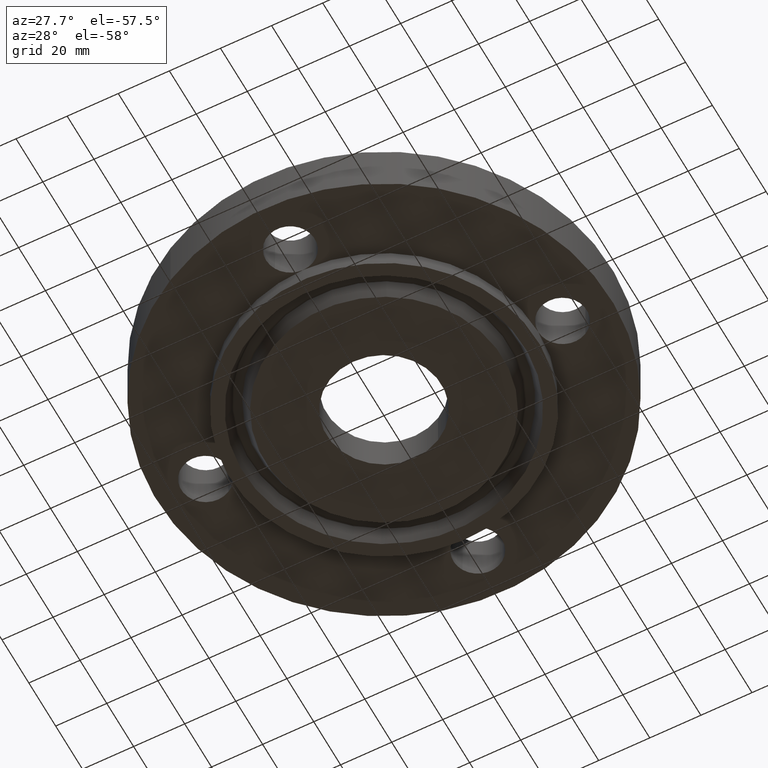
[diagram: clean part render]
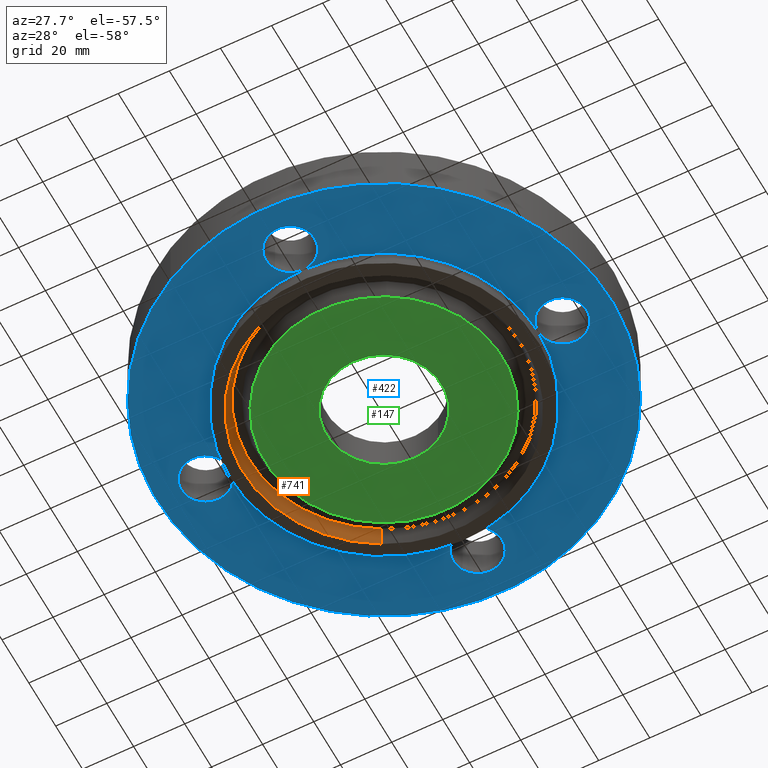
[diagram: same view with three faces highlighted in distinct colors, each labeled with its STEP entity id]
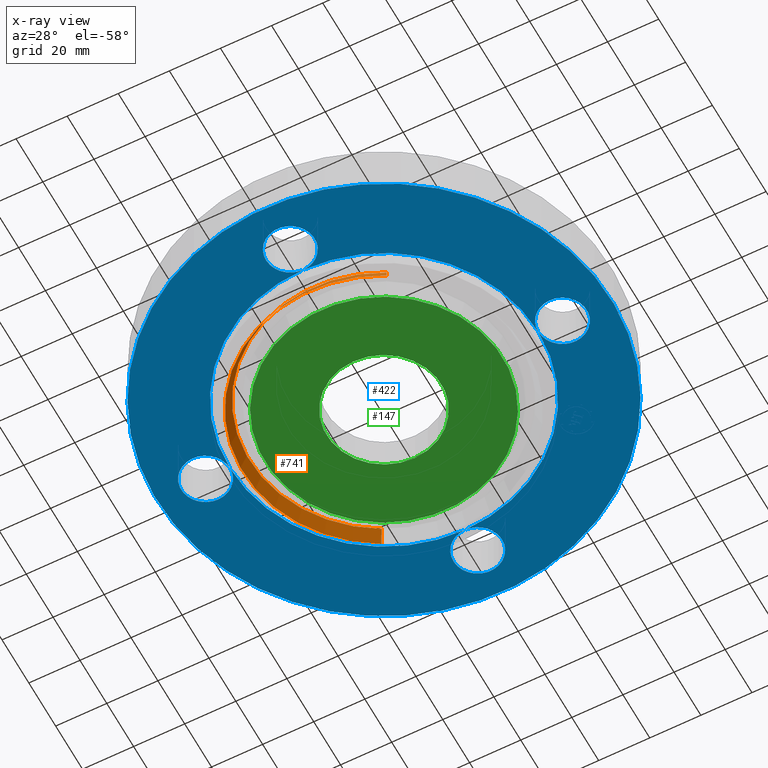
[diagram: x-ray of the same camera — body ghosted, the three highlighted faces saturated]
A machine part, auxiliary view with three faces highlighted in distinct colors.
The next image is the same camera in x-ray (body ghosted, the three faces saturated) — at least one of them is partly hidden behind the body in this view.
Their STEP definitions:

[orange] entity #741 — the highlighted conical surface has half-angle 23 deg.
#211=AXIS2_PLACEMENT_3D('Circle Axis2P3D',#209,#210,$) ;
#702=AXIS2_PLACEMENT_3D('Cone Axis2P3D',#699,#700,#701) ;
#732=AXIS2_PLACEMENT_3D('Circle Axis2P3D',#730,#731,$) ;
#209=CARTESIAN_POINT('Axis2P3D Location',(1.39870617276E-016,4.19611851827E-016,-0.250000000001)) ;
#213=CARTESIAN_POINT('Vertex',(1.04125234166,-1.90599962661,-0.250000000001)) ;
#215=CARTESIAN_POINT('Vertex',(-1.04125234166,1.90599962661,-0.250000000001)) ;
#699=CARTESIAN_POINT('Axis2P3D Location',(0.,0.,-0.0190396522348)) ;
#704=CARTESIAN_POINT('Line Origine',(1.01775165657,-1.86298191111,-0.134519826118)) ;
#708=CARTESIAN_POINT('Vertex',(0.994250971485,-1.8199641956,-0.0190396522348)) ;
#715=CARTESIAN_POINT('Vertex',(-0.994250971485,1.8199641956,-0.0190396522348)) ;
#718=CARTESIAN_POINT('Line Origine',(-1.01775165657,1.86298191111,-0.134519826118)) ;
#730=CARTESIAN_POINT('Axis2P3D Location',(0.,0.,-0.0190396522348)) ;
#210=DIRECTION('Axis2P3D Direction',(0.,0.,-0.0393700787402)) ;
#700=DIRECTION('Axis2P3D Direction',(-0.,-0.,-0.0393700787402)) ;
#701=DIRECTION('Axis2P3D XDirection',(0.0188750212049,-0.0345504945626,0.)) ;
#705=DIRECTION('Vector Direction',(0.00737505833565,-0.0134999537303,-0.0362403485611)) ;
#719=DIRECTION('Vector Direction',(-0.00737505833565,0.0134999537303,-0.0362403485611)) ;
#731=DIRECTION('Axis2P3D Direction',(0.,0.,-0.0393700787402)) ;
#706=VECTOR('Line Direction',#705,0.0393700787402) ;
#720=VECTOR('Line Direction',#719,0.0393700787402) ;
#736=ORIENTED_EDGE('',*,*,#217,.T.) ;
#737=ORIENTED_EDGE('',*,*,#722,.T.) ;
#738=ORIENTED_EDGE('',*,*,#734,.T.) ;
#739=ORIENTED_EDGE('',*,*,#710,.F.) ;
#741=ADVANCED_FACE('PartBody',(#740),#703,.F.) ;
#212=CIRCLE('generated circle',#211,2.17187500001) ;
#733=CIRCLE('generated circle',#732,2.07383814884) ;
#703=CONICAL_SURFACE('Cone',#702,2.07383814884,0.401425727959) ;
#217=EDGE_CURVE('',#214,#216,#212,.T.) ;
#710=EDGE_CURVE('',#214,#709,#707,.F.) ;
#722=EDGE_CURVE('',#216,#716,#721,.F.) ;
#734=EDGE_CURVE('',#716,#709,#733,.F.) ;
#735=EDGE_LOOP('',(#736,#737,#738,#739)) ;
#740=FACE_OUTER_BOUND('',#735,.T.) ;
#707=LINE('Line',#704,#706) ;
#721=LINE('Line',#718,#720) ;
#214=VERTEX_POINT('',#213) ;
#216=VERTEX_POINT('',#215) ;
#709=VERTEX_POINT('',#708) ;
#716=VERTEX_POINT('',#715) ;

[blue] entity #422 — the highlighted planar face has unit normal (0, 0, -1).
#242=AXIS2_PLACEMENT_3D('Circle Axis2P3D',#240,#241,$) ;
#249=AXIS2_PLACEMENT_3D('Circle Axis2P3D',#247,#248,$) ;
#256=AXIS2_PLACEMENT_3D('Circle Axis2P3D',#254,#255,$) ;
#277=AXIS2_PLACEMENT_3D('Circle Axis2P3D',#275,#276,$) ;
#284=AXIS2_PLACEMENT_3D('Circle Axis2P3D',#282,#283,$) ;
#291=AXIS2_PLACEMENT_3D('Circle Axis2P3D',#289,#290,$) ;
#306=AXIS2_PLACEMENT_3D('Plane Axis2P3D',#303,#304,#305) ;
#310=AXIS2_PLACEMENT_3D('Circle Axis2P3D',#308,#309,$) ;
#319=AXIS2_PLACEMENT_3D('Circle Axis2P3D',#317,#318,$) ;
#328=AXIS2_PLACEMENT_3D('Circle Axis2P3D',#326,#327,$) ;
#335=AXIS2_PLACEMENT_3D('Circle Axis2P3D',#333,#334,$) ;
#342=AXIS2_PLACEMENT_3D('Circle Axis2P3D',#340,#341,$) ;
#347=AXIS2_PLACEMENT_3D('Circle Axis2P3D',#345,#346,$) ;
#354=AXIS2_PLACEMENT_3D('Circle Axis2P3D',#352,#353,$) ;
#361=AXIS2_PLACEMENT_3D('Circle Axis2P3D',#359,#360,$) ;
#366=AXIS2_PLACEMENT_3D('Circle Axis2P3D',#364,#365,$) ;
#373=AXIS2_PLACEMENT_3D('Circle Axis2P3D',#371,#372,$) ;
#380=AXIS2_PLACEMENT_3D('Circle Axis2P3D',#378,#379,$) ;
#385=AXIS2_PLACEMENT_3D('Circle Axis2P3D',#383,#384,$) ;
#392=AXIS2_PLACEMENT_3D('Circle Axis2P3D',#390,#391,$) ;
#399=AXIS2_PLACEMENT_3D('Circle Axis2P3D',#397,#398,$) ;
#237=CARTESIAN_POINT('Vertex',(-1.13863565419,-2.0842585845,2.09805925913E-016)) ;
#240=CARTESIAN_POINT('Axis2P3D Location',(0.,0.,2.79741234551E-016)) ;
#244=CARTESIAN_POINT('Vertex',(-2.37500000001,-2.79741234551E-016,0.)) ;
#247=CARTESIAN_POINT('Axis2P3D Location',(0.,0.,2.79741234551E-016)) ;
#251=CARTESIAN_POINT('Vertex',(-9.45568263898E-015,2.37500000001,2.79741234551E-016)) ;
#254=CARTESIAN_POINT('Axis2P3D Location',(0.,0.,2.79741234551E-016)) ;
#258=CARTESIAN_POINT('Vertex',(1.13863565419,2.0842585845,2.09805925913E-016)) ;
#275=CARTESIAN_POINT('Axis2P3D Location',(0.,0.,2.79741234551E-016)) ;
#279=CARTESIAN_POINT('Vertex',(2.37500000001,2.79741234551E-016,0.)) ;
#282=CARTESIAN_POINT('Axis2P3D Location',(0.,0.,2.79741234551E-016)) ;
#286=CARTESIAN_POINT('Vertex',(-5.22767466522E-017,-2.37500000001,0.)) ;
#289=CARTESIAN_POINT('Axis2P3D Location',(0.,0.,2.79741234551E-016)) ;
#303=CARTESIAN_POINT('Axis2P3D Location',(0.,2.37500000001,0.)) ;
#308=CARTESIAN_POINT('Axis2P3D Location',(0.,0.,0.)) ;
#312=CARTESIAN_POINT('Vertex',(-1.67798938512,-3.07153896663,2.79741234551E-016)) ;
#314=CARTESIAN_POINT('Vertex',(1.67798938512,3.07153896663,2.79741234551E-016)) ;
#317=CARTESIAN_POINT('Axis2P3D Location',(0.,0.,0.)) ;
#326=CARTESIAN_POINT('Axis2P3D Location',(3.49676543189E-016,-2.75000000001,0.)) ;
#330=CARTESIAN_POINT('Vertex',(-0.32909346071,-2.57021542303,0.)) ;
#333=CARTESIAN_POINT('Axis2P3D Location',(3.75902283928E-016,-2.75000000001,0.)) ;
#337=CARTESIAN_POINT('Vertex',(0.32909346071,-2.92978457699,0.)) ;
#340=CARTESIAN_POINT('Axis2P3D Location',(3.49676543189E-016,-2.75000000001,0.)) ;
#345=CARTESIAN_POINT('Axis2P3D Location',(2.75000000001,2.79741234551E-016,0.)) ;
#349=CARTESIAN_POINT('Vertex',(2.57021542303,-0.32909346071,0.)) ;
#352=CARTESIAN_POINT('Axis2P3D Location',(2.75000000001,0.,0.)) ;
#356=CARTESIAN_POINT('Vertex',(2.92978457699,0.32909346071,0.)) ;
#359=CARTESIAN_POINT('Axis2P3D Location',(2.75000000001,2.79741234551E-016,0.)) ;
#364=CARTESIAN_POINT('Axis2P3D Location',(-1.04902962957E-016,2.75000000001,0.)) ;
#368=CARTESIAN_POINT('Vertex',(0.32909346071,2.57021542303,0.)) ;
#371=CARTESIAN_POINT('Axis2P3D Location',(-8.74191357973E-018,2.75000000001,0.)) ;
#375=CARTESIAN_POINT('Vertex',(-0.32909346071,2.92978457699,0.)) ;
#378=CARTESIAN_POINT('Axis2P3D Location',(-1.04902962957E-016,2.75000000001,0.)) ;
#383=CARTESIAN_POINT('Axis2P3D Location',(-2.75000000001,-2.79741234551E-016,0.)) ;
#387=CARTESIAN_POINT('Vertex',(-2.57021542303,0.32909346071,0.)) ;
#390=CARTESIAN_POINT('Axis2P3D Location',(-2.75000000001,-2.79741234551E-016,0.)) ;
#394=CARTESIAN_POINT('Vertex',(-2.92978457699,-0.32909346071,0.)) ;
#397=CARTESIAN_POINT('Axis2P3D Location',(-2.75000000001,-2.79741234551E-016,0.)) ;
#241=DIRECTION('Axis2P3D Direction',(0.,0.,-0.0393700787402)) ;
#248=DIRECTION('Axis2P3D Direction',(0.,0.,-0.0393700787402)) ;
#255=DIRECTION('Axis2P3D Direction',(0.,0.,-0.0393700787402)) ;
#276=DIRECTION('Axis2P3D Direction',(0.,0.,-0.0393700787402)) ;
#283=DIRECTION('Axis2P3D Direction',(0.,0.,-0.0393700787402)) ;
#290=DIRECTION('Axis2P3D Direction',(0.,0.,-0.0393700787402)) ;
#304=DIRECTION('Axis2P3D Direction',(0.,0.,-0.0393700787402)) ;
#305=DIRECTION('Axis2P3D XDirection',(0.0393700787402,0.,0.)) ;
#309=DIRECTION('Axis2P3D Direction',(0.,0.,-0.0393700787402)) ;
#318=DIRECTION('Axis2P3D Direction',(0.,0.,-0.0393700787402)) ;
#327=DIRECTION('Axis2P3D Direction',(0.,0.,-0.0393700787402)) ;
#334=DIRECTION('Axis2P3D Direction',(0.,0.,-0.0393700787402)) ;
#341=DIRECTION('Axis2P3D Direction',(0.,0.,-0.0393700787402)) ;
#346=DIRECTION('Axis2P3D Direction',(0.,0.,-0.0393700787402)) ;
#353=DIRECTION('Axis2P3D Direction',(0.,0.,-0.0393700787402)) ;
#360=DIRECTION('Axis2P3D Direction',(0.,0.,-0.0393700787402)) ;
#365=DIRECTION('Axis2P3D Direction',(0.,0.,-0.0393700787402)) ;
#372=DIRECTION('Axis2P3D Direction',(0.,0.,-0.0393700787402)) ;
#379=DIRECTION('Axis2P3D Direction',(0.,0.,-0.0393700787402)) ;
#384=DIRECTION('Axis2P3D Direction',(0.,0.,-0.0393700787402)) ;
#391=DIRECTION('Axis2P3D Direction',(0.,0.,-0.0393700787402)) ;
#398=DIRECTION('Axis2P3D Direction',(0.,0.,-0.0393700787402)) ;
#323=ORIENTED_EDGE('',*,*,#316,.T.) ;
#324=ORIENTED_EDGE('',*,*,#321,.T.) ;
#403=ORIENTED_EDGE('',*,*,#332,.F.) ;
#404=ORIENTED_EDGE('',*,*,#339,.F.) ;
#405=ORIENTED_EDGE('',*,*,#344,.F.) ;
#406=ORIENTED_EDGE('',*,*,#288,.F.) ;
#407=ORIENTED_EDGE('',*,*,#351,.F.) ;
#408=ORIENTED_EDGE('',*,*,#358,.F.) ;
#409=ORIENTED_EDGE('',*,*,#363,.F.) ;
#410=ORIENTED_EDGE('',*,*,#281,.F.) ;
#411=ORIENTED_EDGE('',*,*,#260,.F.) ;
#412=ORIENTED_EDGE('',*,*,#370,.F.) ;
#413=ORIENTED_EDGE('',*,*,#377,.F.) ;
#414=ORIENTED_EDGE('',*,*,#382,.F.) ;
#415=ORIENTED_EDGE('',*,*,#253,.F.) ;
#416=ORIENTED_EDGE('',*,*,#389,.F.) ;
#417=ORIENTED_EDGE('',*,*,#396,.F.) ;
#418=ORIENTED_EDGE('',*,*,#401,.F.) ;
#419=ORIENTED_EDGE('',*,*,#246,.F.) ;
#420=ORIENTED_EDGE('',*,*,#293,.F.) ;
#421=FACE_BOUND('',#402,.T.) ;
#422=ADVANCED_FACE('PartBody',(#325,#421),#307,.T.) ;
#243=CIRCLE('generated circle',#242,2.37500000001) ;
#250=CIRCLE('generated circle',#249,2.37500000001) ;
#257=CIRCLE('generated circle',#256,2.37500000001) ;
#278=CIRCLE('generated circle',#277,2.37500000001) ;
#285=CIRCLE('generated circle',#284,2.37500000001) ;
#292=CIRCLE('generated circle',#291,2.37500000001) ;
#311=CIRCLE('generated circle',#310,3.50000000001) ;
#320=CIRCLE('generated circle',#319,3.50000000001) ;
#329=CIRCLE('generated circle',#328,0.375000000001) ;
#336=CIRCLE('generated circle',#335,0.375000000001) ;
#343=CIRCLE('generated circle',#342,0.375000000001) ;
#348=CIRCLE('generated circle',#347,0.375000000001) ;
#355=CIRCLE('generated circle',#354,0.375000000001) ;
#362=CIRCLE('generated circle',#361,0.375000000001) ;
#367=CIRCLE('generated circle',#366,0.375000000001) ;
#374=CIRCLE('generated circle',#373,0.375000000001) ;
#381=CIRCLE('generated circle',#380,0.375000000001) ;
#386=CIRCLE('generated circle',#385,0.375000000001) ;
#393=CIRCLE('generated circle',#392,0.375000000001) ;
#400=CIRCLE('generated circle',#399,0.375000000001) ;
#246=EDGE_CURVE('',#238,#245,#243,.T.) ;
#253=EDGE_CURVE('',#245,#252,#250,.T.) ;
#260=EDGE_CURVE('',#252,#259,#257,.T.) ;
#281=EDGE_CURVE('',#259,#280,#278,.T.) ;
#288=EDGE_CURVE('',#280,#287,#285,.T.) ;
#293=EDGE_CURVE('',#287,#238,#292,.T.) ;
#316=EDGE_CURVE('',#313,#315,#311,.T.) ;
#321=EDGE_CURVE('',#315,#313,#320,.T.) ;
#332=EDGE_CURVE('',#331,#287,#329,.T.) ;
#339=EDGE_CURVE('',#338,#331,#336,.T.) ;
#344=EDGE_CURVE('',#287,#338,#343,.T.) ;
#351=EDGE_CURVE('',#350,#280,#348,.T.) ;
#358=EDGE_CURVE('',#357,#350,#355,.T.) ;
#363=EDGE_CURVE('',#280,#357,#362,.T.) ;
#370=EDGE_CURVE('',#369,#252,#367,.T.) ;
#377=EDGE_CURVE('',#376,#369,#374,.T.) ;
#382=EDGE_CURVE('',#252,#376,#381,.T.) ;
#389=EDGE_CURVE('',#388,#245,#386,.T.) ;
#396=EDGE_CURVE('',#395,#388,#393,.T.) ;
#401=EDGE_CURVE('',#245,#395,#400,.T.) ;
#322=EDGE_LOOP('',(#323,#324)) ;
#402=EDGE_LOOP('',(#403,#404,#405,#406,#407,#408,#409,#410,#411,#412,#413,#414,#415,#416,#417,#418,#419,#420)) ;
#325=FACE_OUTER_BOUND('',#322,.T.) ;
#307=PLANE('',#306) ;
#238=VERTEX_POINT('',#237) ;
#245=VERTEX_POINT('',#244) ;
#252=VERTEX_POINT('',#251) ;
#259=VERTEX_POINT('',#258) ;
#280=VERTEX_POINT('',#279) ;
#287=VERTEX_POINT('',#286) ;
#313=VERTEX_POINT('',#312) ;
#315=VERTEX_POINT('',#314) ;
#331=VERTEX_POINT('',#330) ;
#338=VERTEX_POINT('',#337) ;
#350=VERTEX_POINT('',#349) ;
#357=VERTEX_POINT('',#356) ;
#369=VERTEX_POINT('',#368) ;
#376=VERTEX_POINT('',#375) ;
#388=VERTEX_POINT('',#387) ;
#395=VERTEX_POINT('',#394) ;

[green] entity #147 — the highlighted planar face has unit normal (0, 0, -1).
#91=AXIS2_PLACEMENT_3D('Circle Axis2P3D',#89,#90,$) ;
#110=AXIS2_PLACEMENT_3D('Circle Axis2P3D',#108,#109,$) ;
#123=AXIS2_PLACEMENT_3D('Plane Axis2P3D',#120,#121,#122) ;
#127=AXIS2_PLACEMENT_3D('Circle Axis2P3D',#125,#126,$) ;
#136=AXIS2_PLACEMENT_3D('Circle Axis2P3D',#134,#135,$) ;
#86=CARTESIAN_POINT('Vertex',(0.424531314436,0.777099358557,-0.250000000001)) ;
#89=CARTESIAN_POINT('Axis2P3D Location',(0.,0.,-0.250000000001)) ;
#93=CARTESIAN_POINT('Vertex',(-0.424531314436,-0.777099358557,-0.250000000001)) ;
#108=CARTESIAN_POINT('Axis2P3D Location',(0.,0.,-0.250000000001)) ;
#120=CARTESIAN_POINT('Axis2P3D Location',(0.,0.885500000004,-0.250000000001)) ;
#125=CARTESIAN_POINT('Axis2P3D Location',(-4.19611851827E-016,0.,-0.250000000001)) ;
#129=CARTESIAN_POINT('Vertex',(-0.876449812764,1.60433062096,-0.250000000001)) ;
#131=CARTESIAN_POINT('Vertex',(0.876449812764,-1.60433062096,-0.250000000001)) ;
#134=CARTESIAN_POINT('Axis2P3D Location',(-6.99353086378E-016,2.79741234551E-016,-0.250000000001)) ;
#90=DIRECTION('Axis2P3D Direction',(0.,0.,-0.0393700787402)) ;
#109=DIRECTION('Axis2P3D Direction',(0.,0.,-0.0393700787402)) ;
#121=DIRECTION('Axis2P3D Direction',(0.,0.,-0.0393700787402)) ;
#122=DIRECTION('Axis2P3D XDirection',(0.0393700787402,0.,0.)) ;
#126=DIRECTION('Axis2P3D Direction',(0.,0.,-0.0393700787402)) ;
#135=DIRECTION('Axis2P3D Direction',(0.,0.,-0.0393700787402)) ;
#140=ORIENTED_EDGE('',*,*,#133,.T.) ;
#141=ORIENTED_EDGE('',*,*,#138,.T.) ;
#144=ORIENTED_EDGE('',*,*,#95,.F.) ;
#145=ORIENTED_EDGE('',*,*,#112,.F.) ;
#146=FACE_BOUND('',#143,.T.) ;
#147=ADVANCED_FACE('PartBody',(#142,#146),#124,.T.) ;
#92=CIRCLE('generated circle',#91,0.885500000004) ;
#111=CIRCLE('generated circle',#110,0.885500000004) ;
#128=CIRCLE('generated circle',#127,1.82812500001) ;
#137=CIRCLE('generated circle',#136,1.82812500001) ;
#95=EDGE_CURVE('',#87,#94,#92,.T.) ;
#112=EDGE_CURVE('',#94,#87,#111,.T.) ;
#133=EDGE_CURVE('',#130,#132,#128,.T.) ;
#138=EDGE_CURVE('',#132,#130,#137,.T.) ;
#139=EDGE_LOOP('',(#140,#141)) ;
#143=EDGE_LOOP('',(#144,#145)) ;
#142=FACE_OUTER_BOUND('',#139,.T.) ;
#124=PLANE('',#123) ;
#87=VERTEX_POINT('',#86) ;
#94=VERTEX_POINT('',#93) ;
#130=VERTEX_POINT('',#129) ;
#132=VERTEX_POINT('',#131) ;